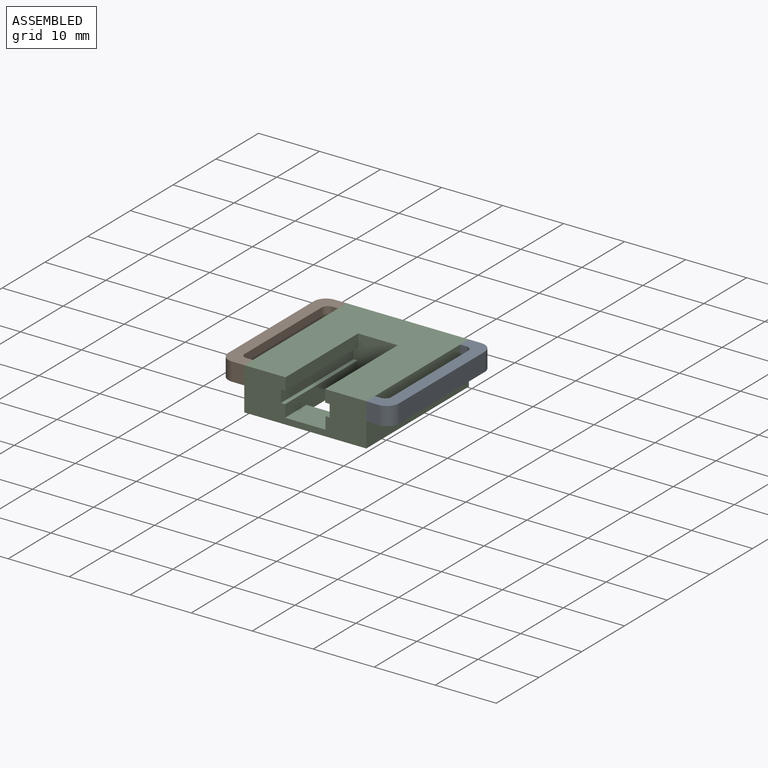
[diagram: assembled view]
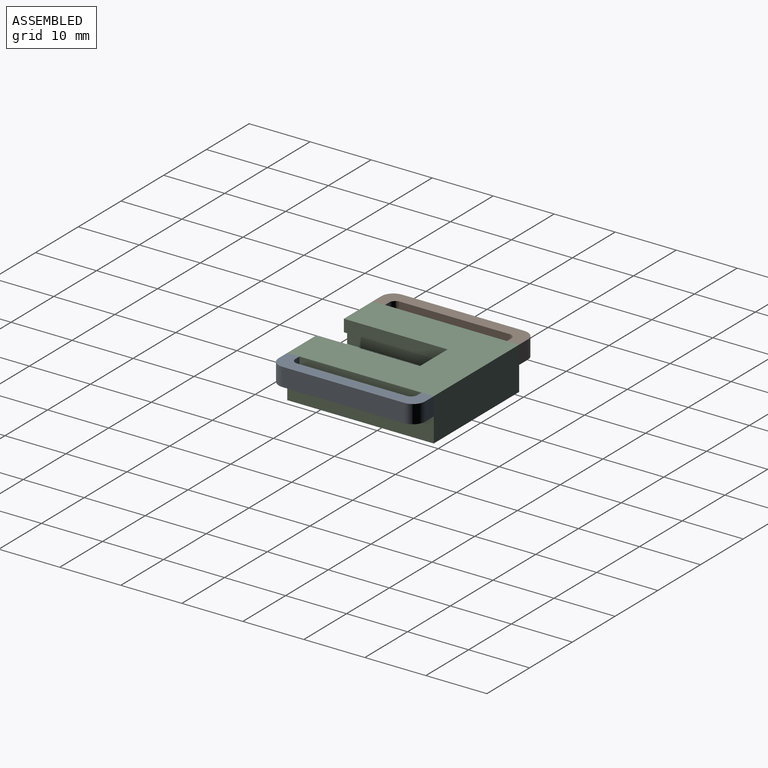
[diagram: assembled view, second angle]
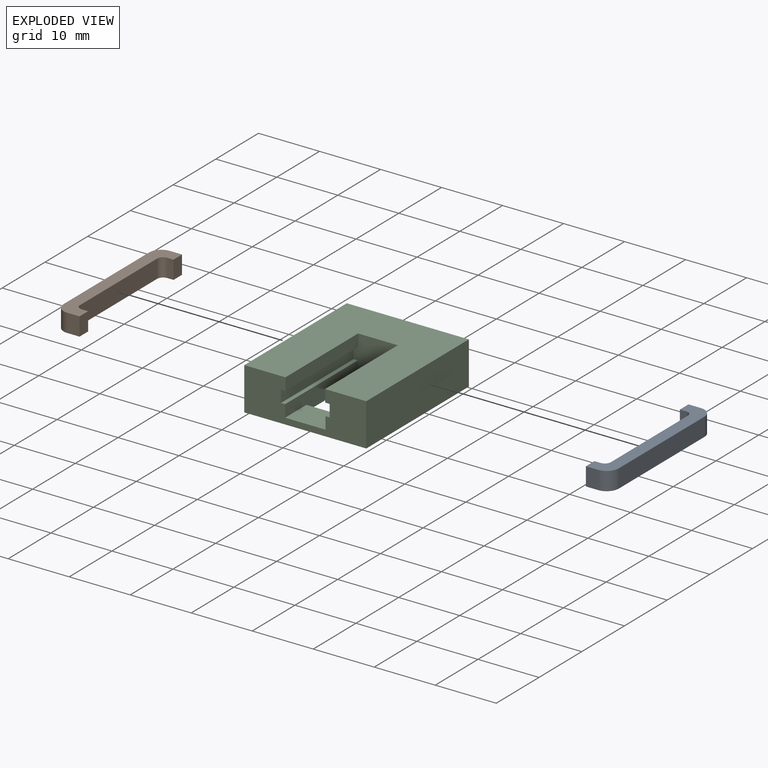
[diagram: exploded view]
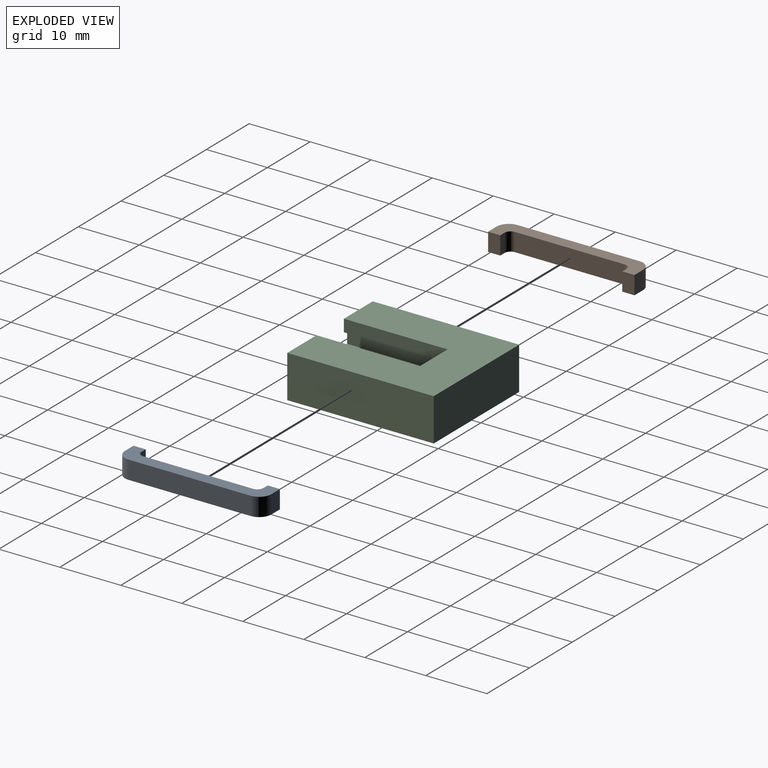
[diagram: exploded view, second angle]
ASSEMBLY  parts=3 mates=2
PART A: 14 faces, bbox 4x24x3 mm
  f0: plane 3x1mm, normal (0,1,0), area 3mm2, adj f1,f8,f9,f13
  f1: plane 3x2mm, normal (-1,0,0), area 6mm2, adj f0,f2,f8,f9
  f2: plane 3x2mm, normal (0,-1,0), area 6mm2, adj f1,f8,f9,f10
  f3: plane 20x3mm, normal (1,0,0), area 60mm2, adj f8,f9,f10,f11
  f4: plane 3x2mm, normal (0,1,0), area 6mm2, adj f5,f8,f9,f11
  f5: plane 3x2mm, normal (-1,0,0), area 6mm2, adj f4,f6,f8,f9
  f6: plane 3x1mm, normal (0,-1,0), area 3mm2, adj f5,f8,f9,f12
  f7: plane 18x3mm, normal (-1,0,0), area 54mm2, adj f8,f9,f12,f13
  f8: plane 24x4mm, normal (0,0,1), area 54.7mm2, adj f0,f1,f2,f3,f4,f5,f6,f7
  f9: plane 24x4mm, normal (0,0,-1), area 54.7mm2, adj f0,f1,f2,f3,f4,f5,f6,f7
  f10: cylinder r=2mm len=3mm, axis (0,0,1), area 9.4mm2, adj f2,f3,f8,f9
  f11: cylinder r=2mm len=3mm, axis (0,0,-1), area 9.4mm2, adj f3,f4,f8,f9
  f12: cylinder r=1mm len=3mm, axis (0,0,1), area 4.7mm2, adj f6,f7,f8,f9
  f13: cylinder r=1mm len=3mm, axis (0,0,-1), area 4.7mm2, adj f0,f7,f8,f9
PART B: same geometry as A
PART C: 19 faces, bbox 20x24x7 mm
  f0: plane 17x2mm, normal (-1,0,0), area 34mm2, adj f1,f6,f12,f18
  f1: plane 17x0.75mm, normal (0,0,-1), area 12.8mm2, adj f0,f7,f12,f18
  f2: plane 17x0.75mm, normal (0,0,-1), area 12.8mm2, adj f3,f8,f12,f18
  f3: plane 17x2mm, normal (1,0,0), area 34mm2, adj f2,f6,f12,f18
  f4: plane 17x0.69mm, normal (0,0,1), area 11.7mm2, adj f8,f12,f14,f18
  f5: plane 17x0.69mm, normal (0,0,1), area 11.7mm2, adj f7,f12,f16,f18
  f6: plane 24x20mm, normal (0,0,1), area 369.5mm2, adj f0,f3,f9,f11,f12,f13,f18
  f7: plane 17x2mm, normal (-1,0,0), area 34mm2, adj f1,f5,f12,f18
  f8: plane 17x2mm, normal (1,0,0), area 34mm2, adj f2,f4,f12,f18
  f9: plane 24x7mm, normal (-1,0,0), area 168mm2, adj f6,f10,f12,f13
  f10: plane 24x20mm, normal (0,0,-1), area 400.6mm2, adj f9,f11,f12,f13,f14,f16,f17,f18
  f11: plane 24x7mm, normal (1,0,0), area 168mm2, adj f6,f10,f12,f13
  f12: plane 20x7mm, normal (0,-1,0), area 97.8mm2, adj f0,f1,f2,f3,f4,f5,f6,f7
  f13: plane 20x7mm, normal (0,1,0), area 140mm2, adj f6,f9,f10,f11
  f14: plane 17x3mm, normal (1,0,0), area 46mm2, adj f4,f10,f12,f15,f17,f18
  f15: plane 6.62x5mm, normal (0,0,1), area 33.1mm2, adj f12,f14,f16,f17
  f16: plane 17x3mm, normal (-1,0,0), area 46mm2, adj f5,f10,f12,f15,f17,f18
  f17: plane 6.62x1mm, normal (0,1,0), area 6.6mm2, adj f10,f14,f15,f16
  f18: plane 8x7mm, normal (0,-1,0), area 48.9mm2, adj f0,f1,f2,f3,f4,f5,f6,f7
PLACE A t=(9.99,7.28,1.64)mm
PLACE B rot(axis=(0,0,1),180deg) t=(-10.01,7.28,1.64)mm
PLACE C t=(-0.01,7.28,-0.86)mm
MATE fastened A.f1 <-> C.f11  axis (-1,0,0) through (9.99,-4.72,3.14)mm
MATE fastened B.f5 <-> C.f9  axis (1,0,0) through (-10.01,-4.72,3.14)mm
